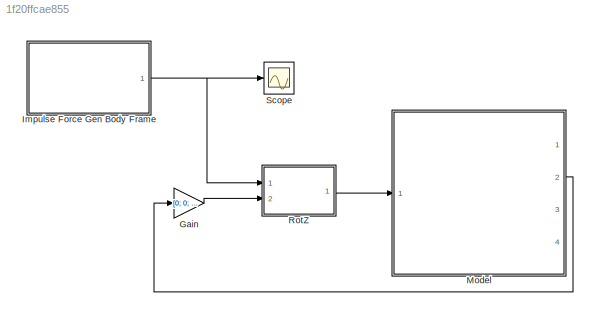
MODEL slx_1f20ffcae855
KIND model
CONFIG AbsTol = auto
CONFIG EnableMultiTasking = off
CONFIG FixedStep = auto
CONFIG MaxStep = auto
CONFIG MinStep = auto
CONFIG RelTol = 1e-3
CONFIG SampleTimeConstraint = Unconstrained
CONFIG Solver = VariableStepAuto
CONFIG SolverName = VariableStepAuto
CONFIG StartTime = 0.0
CONFIG StopTime = 10.0
BLOCK [Gain] Gain
  Gain = [0; 0; 1]
  OutDataTypeStr = Inherit: Inherit via internal rule
  ParamDataTypeStr = Inherit: Inherit via internal rule
  SaturateOnIntegerOverflow = off
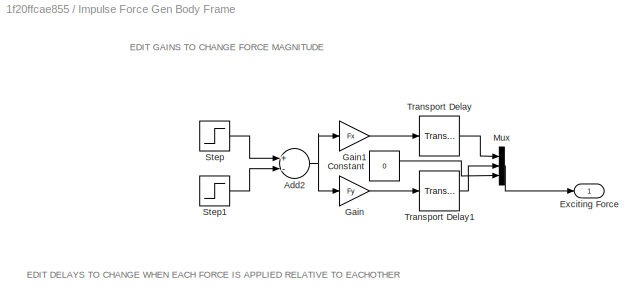
BLOCK [SubSystem] Impulse Force Gen Body Frame
  Ports = [0, 1]
  RequestExecContextInheritance = off
BLOCK [Sum] Impulse Force Gen Body Frame/Add2
  InputSameDT = off
  Inputs = +-
  OutDataTypeStr = Inherit: Inherit via internal rule
  Ports = [2, 1]
  SaturateOnIntegerOverflow = off
BLOCK [Constant] Impulse Force Gen Body Frame/Constant
  Value = 0
BLOCK [Outport] Impulse Force Gen Body Frame/Exciting Force 
  IconDisplay = Port number
BLOCK [Gain] Impulse Force Gen Body Frame/Gain
  Gain = Fy
  OutDataTypeStr = Inherit: Inherit via internal rule
  ParamDataTypeStr = Inherit: Inherit via internal rule
  SaturateOnIntegerOverflow = off
BLOCK [Gain] Impulse Force Gen Body Frame/Gain1
  Gain = Fx
  OutDataTypeStr = Inherit: Inherit via internal rule
  ParamDataTypeStr = Inherit: Inherit via internal rule
  SaturateOnIntegerOverflow = off
BLOCK [Mux] Impulse Force Gen Body Frame/Mux
  DisplayOption = bar
  Inputs = 3
  Ports = [3, 1]
BLOCK [Step] Impulse Force Gen Body Frame/Step
  SampleTime = 0
  Time = 0
BLOCK [Step] Impulse Force Gen Body Frame/Step1
  SampleTime = 0
BLOCK [TransportDelay] Impulse Force Gen Body Frame/Transport Delay
  DelayTime = Delayx
  Ports = [1, 1]
BLOCK [TransportDelay] Impulse Force Gen Body Frame/Transport Delay1
  DelayTime = Delayy
  Ports = [1, 1]
BLOCK [ModelReference] Model
  ModelNameDialog = PendulumRCSPlantWPsi
  ModelReferenceVersion = 1.202
  Ports = [1, 4]
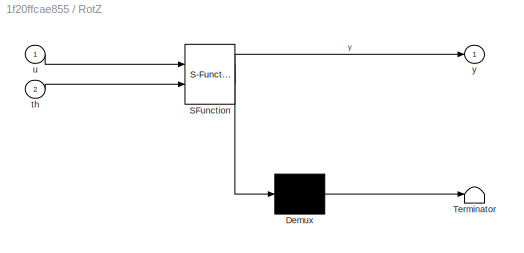
BLOCK [SubSystem] RotZ
  ErrorFcn = Stateflow.Translate.translate
  PermitHierarchicalResolution = ExplicitOnly
  Ports = [2, 1]
  RequestExecContextInheritance = off
  SFBlockType = MATLAB Function
  TreatAsAtomicUnit = on
BLOCK [Demux] RotZ/ Demux 
  Outputs = 1
  Ports = [1, 1]
BLOCK [S-Function] RotZ/ SFunction 
  EnableBusSupport = on
  FunctionName = sf_sfun
  PortCounts = [2 2]
  Ports = [2, 2]
  SFcnIsStateOwnerBlock = off
  SFunctionDeploymentMode = off
  Tag = Stateflow S-Function PlantWTorsionSimulation 2
BLOCK [Terminator] RotZ/ Terminator 
BLOCK [Inport] RotZ/th
  IconDisplay = Port number
  Port = 2
BLOCK [Inport] RotZ/u
  IconDisplay = Port number
BLOCK [Outport] RotZ/y
  IconDisplay = Port number
BLOCK [Scope] Scope
  Floating = off
  NumInputPorts = 1
  Ports = [1]
  ScopeSpecificationString = Simulink.scopes.TimeScopeBlockCfg('CurrentConfiguration', extmgr.ConfigurationSet(extmgr.Configuration('Core','General UI',true),extmgr.Configuration('Core','Source UI',true),extmgr.Configuration('Sources','WiredSimulink',true),extmgr.Configuration('Visuals','Time Domain',true),extmgr.Configuration('Tools','Plot Navigation',true),extmgr.Configuration('Tools','Measurements',true,'Version','2018b'))...<+45ch>
ANNOTATION Impulse Force Gen Body Frame: EDIT DELAYS TO CHANGE WHEN EACH FORCE IS APPLIED RELATIVE TO EACHOTHER
ANNOTATION Impulse Force Gen Body Frame: EDIT GAINS TO CHANGE FORCE MAGNITUDE
LINE Gain:1 -> RotZ:2
NET Impulse Force Gen Body Frame/Add2:1 -> Impulse Force Gen Body Frame/Gain1:1, Impulse Force Gen Body Frame/Gain:1
LINE Impulse Force Gen Body Frame/Constant:1 -> Impulse Force Gen Body Frame/Mux:3
LINE Impulse Force Gen Body Frame/Gain1:1 -> Impulse Force Gen Body Frame/Transport Delay:1
LINE Impulse Force Gen Body Frame/Gain:1 -> Impulse Force Gen Body Frame/Transport Delay1:1
LINE Impulse Force Gen Body Frame/Mux:1 -> Impulse Force Gen Body Frame/Exciting Force :1
LINE Impulse Force Gen Body Frame/Step1:1 -> Impulse Force Gen Body Frame/Add2:2
LINE Impulse Force Gen Body Frame/Step:1 -> Impulse Force Gen Body Frame/Add2:1
LINE Impulse Force Gen Body Frame/Transport Delay1:1 -> Impulse Force Gen Body Frame/Mux:2
LINE Impulse Force Gen Body Frame/Transport Delay:1 -> Impulse Force Gen Body Frame/Mux:1
NET Impulse Force Gen Body Frame:1 -> RotZ:1, Scope:1
LINE Model:2 -> Gain:1
LINE RotZ:1 -> Model:1
note: NET lines group one-source signal fan-out (src -> all destinations, sorted); 1:1 wires keep LINE
CHART RotZ states=1 transitions=1
  STATE_LABEL 'eML_blk_kernel()'
  STATE_LABEL 'SCRIPT:\nfunction y = fcn(u, th)\nt = th(3);\nRz = [cos(-t) -sin(-t) 0; sin(-t) cos(-t) 0; 0 0 1];\ny = Rz*u;\n'
